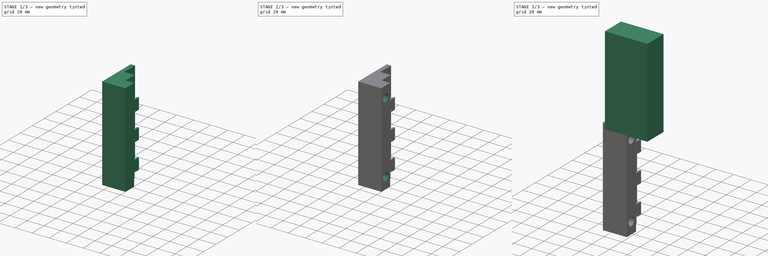
[diagram: build sequence overview — one tinted view per stage of 3, left to right]
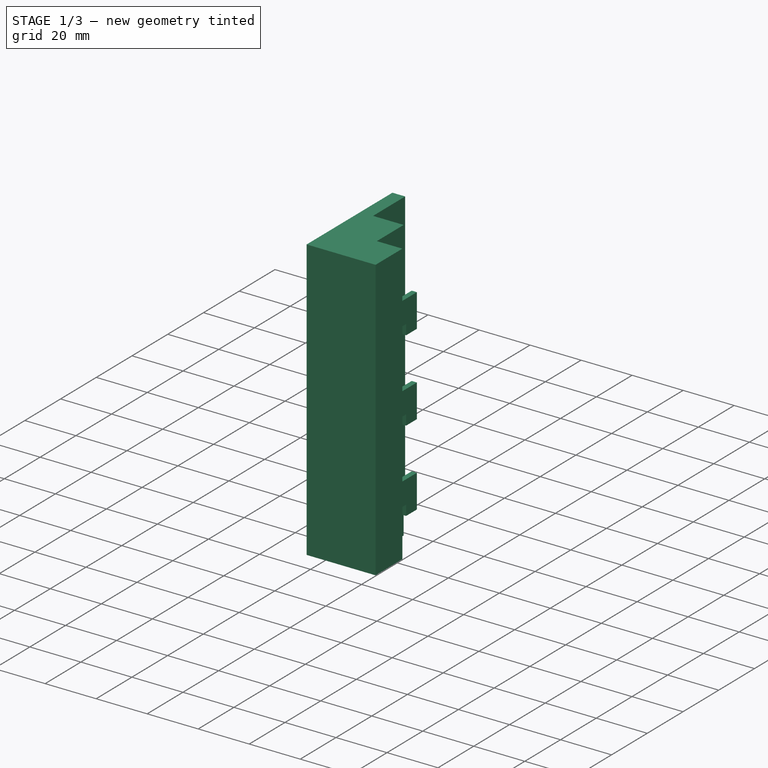
[diagram: stage 1 of 3 — iso view after this stage's code; geometry added in this stage tinted green]
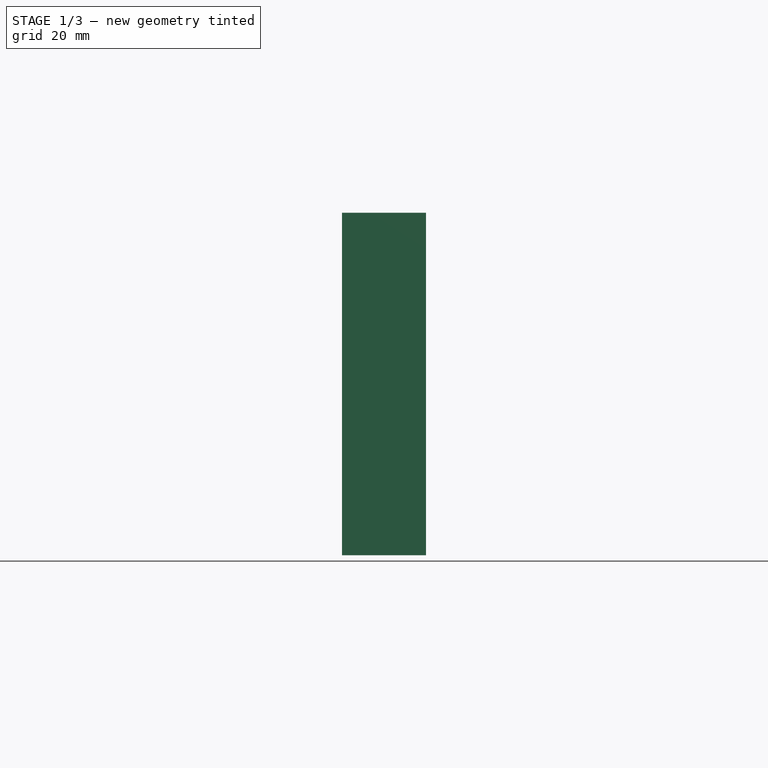
[diagram: stage 1 of 3 — front view after this stage's code; geometry added in this stage tinted green]
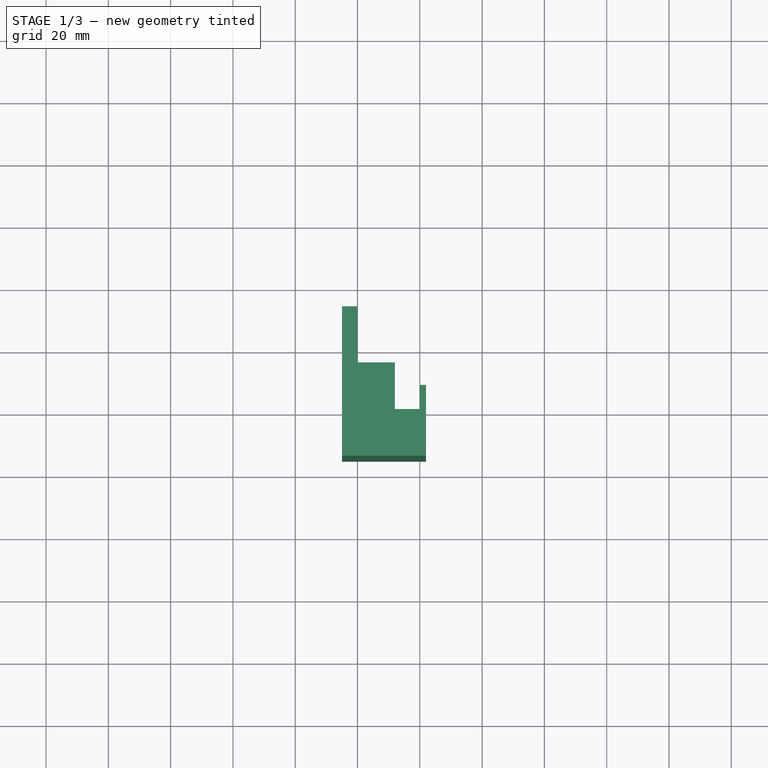
[diagram: stage 1 of 3 — top view after this stage's code; geometry added in this stage tinted green]
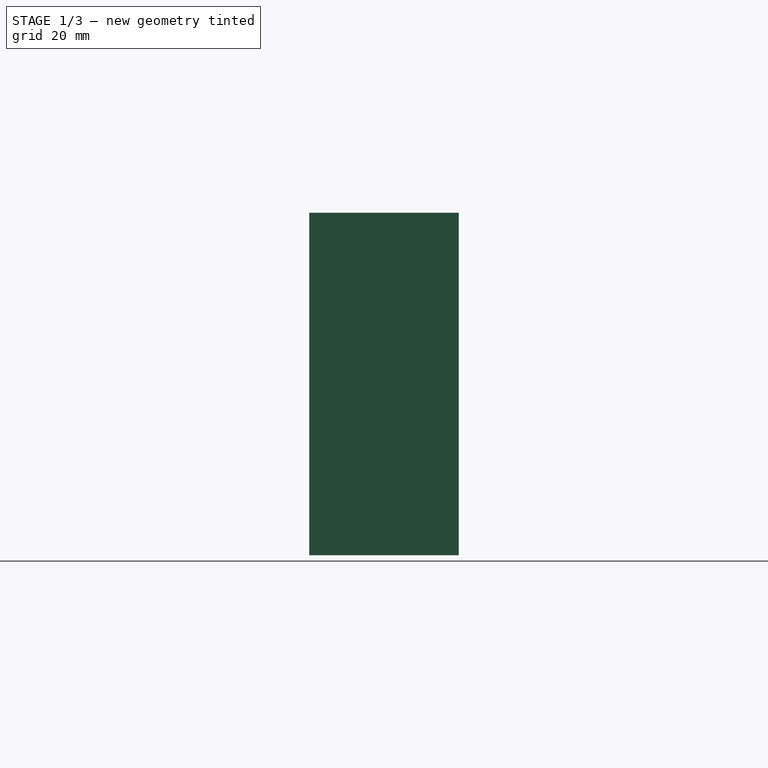
[diagram: stage 1 of 3 — right view after this stage's code; geometry added in this stage tinted green]
FCSTD DOCUMENT  (FreeCAD 0.19R24291 (Git))
Label: rack_rail_grabbers
License: All rights reserved
LicenseURL: http://en.wikipedia.org/wiki/All_rights_reserved
objects: Sketcher::SketchObject×6, PartDesign::Pad×3, PartDesign::Body×3, PartDesign::Hole×3, App::Part×2, PartDesign::FeatureBase×1
note: 22 computed .brp shape members not serialized (recipe doc carries the construction recipe); baked Part::Feature solids carry a one-line shape summary decoded from their .brp

FEATURE [PartDesign::Body] Body002
  BaseFeature = -> Body001
  Group = -> [Clone]
  Origin = -> Origin004
  Placement = pos=(0,-84,0) rot=(0,0,1;0rad)
  Tip = -> Clone
FEATURE [App::Part] Part001
  Group = -> [Body001,Body002]
  Origin = -> Origin002
  Placement = pos=(-25,3.3e-15,-110) rot=(0.57735,0.57735,-0.57735;4.18879rad)
FEATURE [Sketcher::SketchObject] Sketch004
  FullyConstrained = true
  MapMode = 5
  Support = -> [XY_Plane001]
  sketch-geometry (8):
    g0: LineSegment StartX=0 StartY=-15 StartZ=0 EndX=-25 EndY=-15 EndZ=0
    g1: LineSegment StartX=-25 StartY=-15 StartZ=0 EndX=-25 EndY=33 EndZ=0
    g2: LineSegment StartX=-25 StartY=33 StartZ=0 EndX=-20 EndY=33 EndZ=0
    g3: LineSegment StartX=-20 StartY=33 StartZ=0 EndX=-20 EndY=15 EndZ=0
    g4: LineSegment StartX=-20 StartY=15 StartZ=0 EndX=-8 EndY=15 EndZ=0
    g5: LineSegment StartX=-8 StartY=15 StartZ=0 EndX=-8 EndY=0 EndZ=0
    g6: LineSegment StartX=-8 StartY=0 StartZ=0 EndX=0 EndY=0 EndZ=0
    g7: LineSegment StartX=0 StartY=0 StartZ=0 EndX=0 EndY=-15 EndZ=0
  constraints (23):
    c: Horizontal(g0)
    c: Coincident(g0,g1)
    c: Vertical(g1)
    c: Coincident(g1,g2)
    c: Horizontal(g2)
    c: Coincident(g2,g3)
    c: Vertical(g3)
    c: Coincident(g3,g4)
    c: Horizontal(g4)
    c: Coincident(g4,g5)
    c: Vertical(g5)
    c: Coincident(g5,g6)
    c: Horizontal(g6)
    c: Coincident(g6,g7)
    c: Vertical(g7)
    c: Coincident(g7,g0)
    c: DistanceY(g1,g1) = 48
    c: DistanceX(g2,g2) = 5
    c: DistanceX(g4,g4) = 12
    c: DistanceX(g6,g6) = 8
    c: DistanceY(g7,g7) = 15
    c: Equal(g5,g7)
    c: Coincident(g6,g-1)
FEATURE [PartDesign::Pad] Pad
  Direction = (1,1,1)
  Length = 110
  Length2 = 100
  Profile = -> Sketch004
  Reversed = true
  Type = 0
FEATURE [Sketcher::SketchObject] Sketch
  FullyConstrained = true
  MapMode = 5
  Placement = pos=(0,0,0) rot=(0.57735,0.57735,0.57735;2.0944rad)
  Support = -> [Pad]
  expr: Constraints[15] = 17mm - .Constraints.notch_depth
  sketch-geometry (24):
    g0: LineSegment StartX=-15 StartY=-110 StartZ=0 EndX=0 EndY=-110 EndZ=0
    g1: LineSegment StartX=-15 StartY=0 StartZ=0 EndX=-15 EndY=-110 EndZ=0
    g2: LineSegment StartX=0 StartY=-18.5 StartZ=0 EndX=8.1 EndY=-18.5 EndZ=0
    g3: LineSegment StartX=8.1 StartY=-18.5 StartZ=0 EndX=8.1 EndY=-31.5 EndZ=0
    g4: LineSegment StartX=8.1 StartY=-31.5 StartZ=0 EndX=2.1 EndY=-31.5 EndZ=0
    g5: LineSegment StartX=2.1 StartY=-31.5 StartZ=0 EndX=2.1 EndY=-27.5 EndZ=0
    g6: LineSegment StartX=2.1 StartY=-27.5 StartZ=0 EndX=0 EndY=-27.5 EndZ=0
    g7: LineSegment StartX=0 StartY=-50.5 StartZ=0 EndX=8.1 EndY=-50.5 EndZ=0
    g8: LineSegment StartX=8.1 StartY=-50.5 StartZ=0 EndX=8.1 EndY=-63.5 EndZ=0
    g9: LineSegment StartX=8.1 StartY=-63.5 StartZ=0 EndX=2.1 EndY=-63.5 EndZ=0
    g10: LineSegment StartX=2.1 StartY=-63.5 StartZ=0 EndX=2.1 EndY=-59.5 EndZ=0
    g11: LineSegment StartX=2.1 StartY=-59.5 StartZ=0 EndX=0 EndY=-59.5 EndZ=0
    g12: LineSegment StartX=0 StartY=-18.5 StartZ=0 EndX=0 EndY=-50.5 EndZ=0
    g13: LineSegment StartX=0 StartY=-82.5 StartZ=0 EndX=8.1 EndY=-82.5 EndZ=0
    g14: LineSegment StartX=8.1 StartY=-82.5 StartZ=0 EndX=8.1 EndY=-95.5 EndZ=0
    g15: LineSegment StartX=8.1 StartY=-95.5 StartZ=0 EndX=2.1 EndY=-95.5 EndZ=0
    g16: LineSegment StartX=2.1 StartY=-95.5 StartZ=0 EndX=2.1 EndY=-91.5 EndZ=0
    g17: LineSegment StartX=2.1 StartY=-91.5 StartZ=0 EndX=0 EndY=-91.5 EndZ=0
    g18: LineSegment StartX=0 StartY=-50.5 StartZ=0 EndX=0 EndY=-82.5 EndZ=0
    g19: LineSegment StartX=0 StartY=-27.5 StartZ=0 EndX=0 EndY=-50.5 EndZ=0
    g20: LineSegment StartX=0 StartY=-59.5 StartZ=0 EndX=0 EndY=-82.5 EndZ=0
    g21: LineSegment StartX=0 StartY=-91.5 StartZ=0 EndX=0 EndY=-110 EndZ=0
    g22: LineSegment StartX=0 StartY=-18.5 StartZ=0 EndX=0 EndY=0 EndZ=0
    g23: LineSegment StartX=-15 StartY=0 StartZ=0 EndX=0 EndY=0 EndZ=0
  constraints (69):
    c: PointOnObject(g0,g-2)
    c: PointOnObject(g2,g-2)
    c: Coincident(g1,g0)
    c: Vertical(g1)
    c: Horizontal(g2)
    c: Coincident(g2,g3)
    c: Vertical(g3)
    c: Coincident(g3,g4)
    c: Horizontal(g4)
    c: Coincident(g4,g5)
    c: Vertical(g5)
    c: Coincident(g5,g6)
    c: Horizontal(g6)
    c: DistanceY(g5,g5) = 4  'notch_depth'
    c: DistanceX(g6,g6) = 2.1
    c: DistanceY(g3,g3) = 13
    c: DistanceX(g4,g4) = 6
    c: Vertical(g6,g2)
    c: Horizontal(g7)
    c: Coincident(g7,g8)
    c: Vertical(g8)
    c: Coincident(g8,g9)
    c: Horizontal(g9)
    c: Coincident(g9,g10)
    c: Vertical(g10)
    c: Coincident(g10,g11)
    c: Horizontal(g11)
    c: Equal(g5,g10) = 4  'notch_depth'
    c: Equal(g6,g11) = 3
    c: Equal(g3,g8) = 13
    c: Equal(g4,g9) = 6
    c: Vertical(g11,g7)
    c: Coincident(g2,g12)
    c: Coincident(g7,g12)
    c: Distance(g12) = 32
    c: Horizontal(g13)
    c: Coincident(g13,g14)
    c: Vertical(g14)
    c: Coincident(g14,g15)
    c: Horizontal(g15)
    c: Coincident(g15,g16)
    c: Vertical(g16)
    c: Coincident(g16,g17)
    c: Horizontal(g17)
    c: Equal(g5,g16) = 4  'notch_depth'
    c: Equal(g6,g17) = 3
    c: Equal(g3,g14) = 13
    c: Equal(g4,g15) = 6
    c: Vertical(g17,g13)
    c: Coincident(g7,g18)
    c: Coincident(g13,g18)
    c: Equal(g12,g18)
    c: Parallel(g18,g12)
    c: Vertical(g12)
    c: Coincident(g19,g6)
    c: Coincident(g19,g7)
    c: Coincident(g20,g11)
    c: Coincident(g20,g13)
    c: Coincident(g21,g17)
    c: Coincident(g21,g0)
    c: Coincident(g22,g2)
    c: Coincident(g23,g1)
    c: Coincident(g23,g22)
    c: Horizontal(g0)
    c: Horizontal(g23)
    c: DistanceY(g1,g1) = 110
    c: Equal(g21,g22)
    c: DistanceX(g0,g0) = 15  'face_depth'
    c: Coincident(g22,g-1)
FEATURE [PartDesign::Pad] Pad003
  BaseFeature = -> Pad
  Direction = (1,1,1)
  Length = 2
  Length2 = 100
  Profile = -> Sketch
  Type = 0
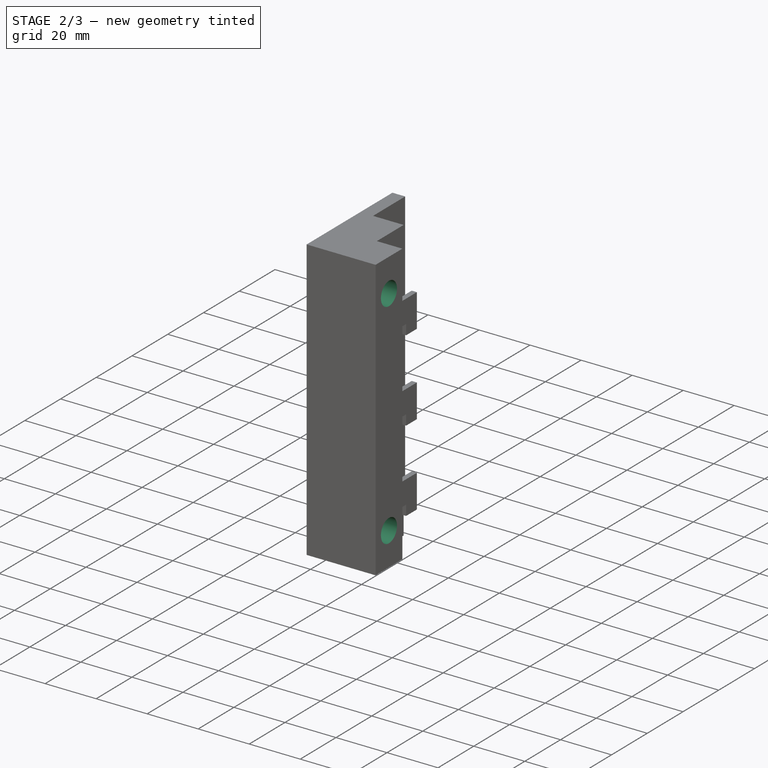
[diagram: stage 2 of 3 — iso view after this stage's code; geometry added in this stage tinted green]
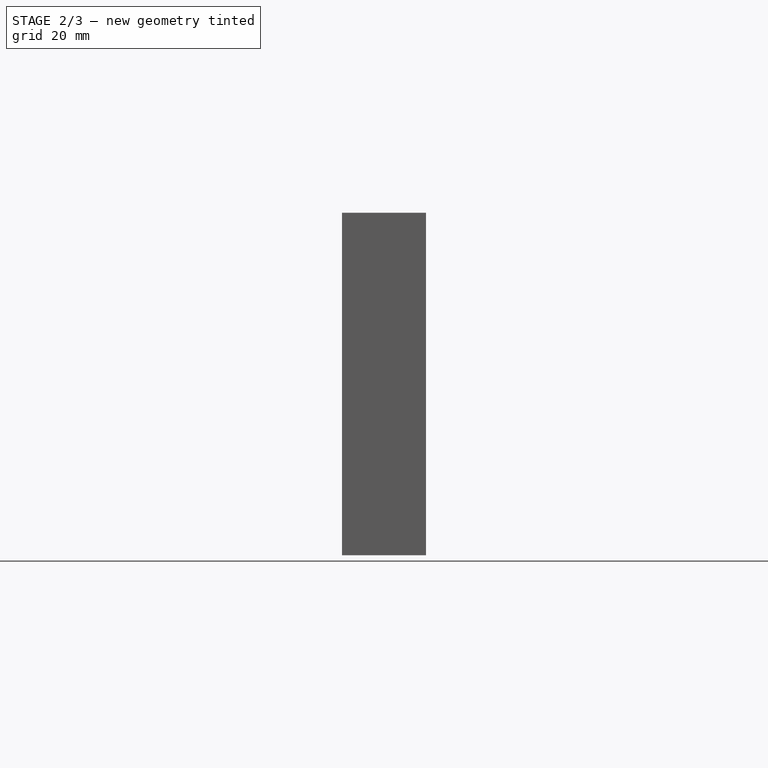
[diagram: stage 2 of 3 — front view after this stage's code; geometry added in this stage tinted green]
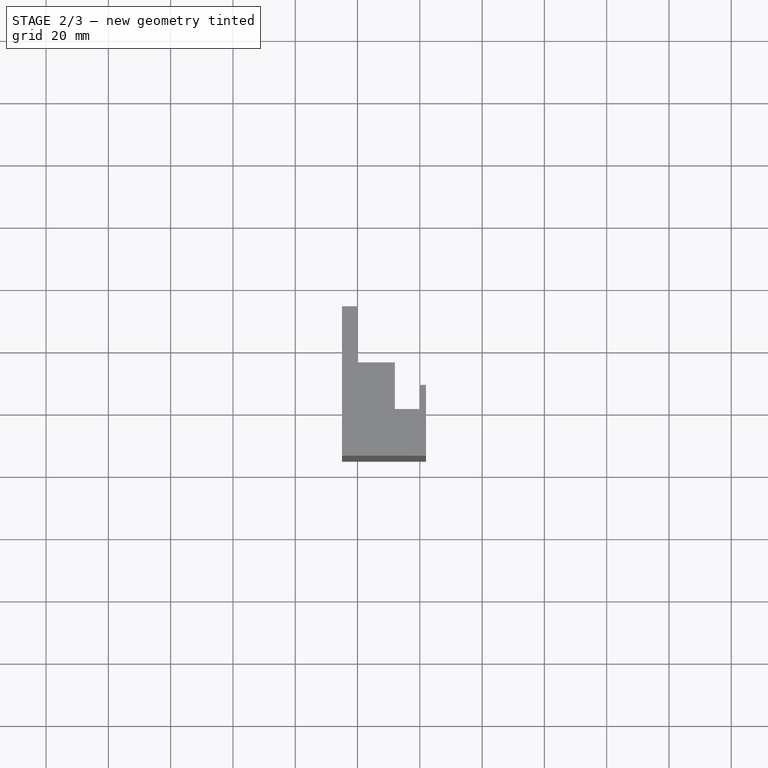
[diagram: stage 2 of 3 — top view after this stage's code; geometry added in this stage tinted green]
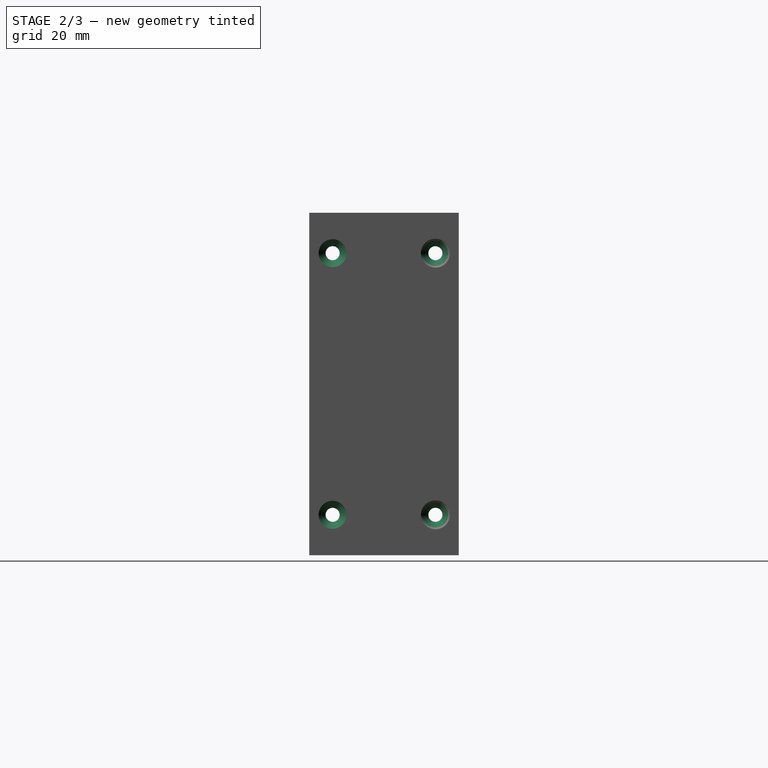
[diagram: stage 2 of 3 — right view after this stage's code; geometry added in this stage tinted green]
FEATURE [Sketcher::SketchObject] Sketch005
  ExternalGeometry = -> [Pad003]
  FullyConstrained = false
  MapMode = 5
  Placement = pos=(2,0,0) rot=(0.57735,0.57735,0.57735;2.0944rad)
  Support = -> [Pad003]
  sketch-geometry (4):
    g0: Circle CenterX=-7.5 CenterY=-13 CenterZ=0 NormalX=0 NormalY=0 NormalZ=1 AngleXU=0 Radius=2.61941
    g1: Circle CenterX=-7.5 CenterY=-97 CenterZ=0 NormalX=0 NormalY=0 NormalZ=1 AngleXU=0 Radius=1.45299
    g2: LineSegment StartX=-7.5 StartY=0 StartZ=0 EndX=-7.5 EndY=-13 EndZ=0
    g3: LineSegment StartX=-7.5 StartY=-97 StartZ=0 EndX=-7.5 EndY=-110 EndZ=0
  constraints (11):
    c: Vertical(g1,g0)
    c: PointOnObject(g2,g-1)
    c: Coincident(g2,g0)
    c: Vertical(g2)
    c: Coincident(g3,g1)
    c: Vertical(g3)
    c: Equal(g2,g3)
    c: PointOnObject(g3,g-3)
    c: DistanceX(g-3,g-3) = 15  'width'
    c: DistanceX(g-3,g3) = 7.5
    c: DistanceY(g3,g1) = 13
FEATURE [PartDesign::Hole] Hole
  BaseFeature = -> Pad003
  Depth = 25
  DepthType = 1
  Diameter = 4.5
  DrillForDepth = false
  DrillPoint = 1
  DrillPointAngle = 118
  HoleCutCountersinkAngle = 90
  HoleCutCustomValues = false
  HoleCutDepth = 15
  HoleCutDiameter = 9
  HoleCutType = 1
  ModelActualThread = false
  Profile = -> Sketch005
  Tapered = false
  TaperedAngle = 90
  ThreadAngle = 0
  ThreadClass = 0
  ThreadCutOffInner = 0
  ThreadCutOffOuter = 0
  ThreadDirection = 0
  ThreadFit = 0
  ThreadPitch = 0
  ThreadSize = 11
  ThreadType = 1
  Threaded = false
FEATURE [Sketcher::SketchObject] Sketch006
  ExternalGeometry = -> [Hole]
  FullyConstrained = false
  MapMode = 5
  Placement = pos=(-13,0,0) rot=(0.57735,0.57735,0.57735;2.0944rad)
  Support = -> [Hole]
  sketch-geometry (2):
    g0: Circle CenterX=-7.5 CenterY=-13 CenterZ=0 NormalX=0 NormalY=0 NormalZ=1 AngleXU=0 Radius=8.2228
    g1: Circle CenterX=-7.5 CenterY=-97 CenterZ=0 NormalX=0 NormalY=0 NormalZ=1 AngleXU=0 Radius=8.7535
  constraints (2):
    c: Coincident(g0,g-3)
    c: Coincident(g1,g-4)
FEATURE [PartDesign::Hole] Hole001
  BaseFeature = -> Hole
  Depth = 25
  DepthType = 0
  Diameter = 4.5
  DrillForDepth = false
  DrillPoint = 1
  DrillPointAngle = 118
  HoleCutCountersinkAngle = 90
  HoleCutCustomValues = false
  HoleCutDepth = 0
  HoleCutDiameter = 9
  HoleCutType = 2
  ModelActualThread = false
  Profile = -> Sketch006
  Tapered = false
  TaperedAngle = 90
  ThreadAngle = 0
  ThreadClass = 0
  ThreadCutOffInner = 0
  ThreadCutOffOuter = 0
  ThreadDirection = 0
  ThreadFit = 0
  ThreadPitch = 0
  ThreadSize = 11
  ThreadType = 1
  Threaded = false
FEATURE [Sketcher::SketchObject] Sketch007
  ExternalGeometry = -> [Hole001]
  FullyConstrained = false
  MapMode = 5
  Placement = pos=(-20,0,0) rot=(0.57735,0.57735,0.57735;2.0944rad)
  Support = -> [Hole001]
  sketch-geometry (4):
    g0: Circle CenterX=25.5 CenterY=-13 CenterZ=0 NormalX=0 NormalY=0 NormalZ=1 AngleXU=0 Radius=3.23762
    g1: Circle CenterX=25.5 CenterY=-97 CenterZ=0 NormalX=0 NormalY=0 NormalZ=1 AngleXU=0 Radius=3.85304
    g2: LineSegment StartX=-7.5 StartY=-13 StartZ=0 EndX=-15 EndY=-13 EndZ=0
    g3: LineSegment StartX=25.5 StartY=-13 StartZ=0 EndX=33 EndY=-13 EndZ=0
  constraints (10):
    c: Horizontal(g1,g-4)
    c: Horizontal(g0,g-3)
    c: Vertical(g1,g0)
    c: Coincident(g2,g-3)
    c: PointOnObject(g2,g-5)
    c: Horizontal(g2)
    c: Coincident(g3,g0)
    c: PointOnObject(g3,g-6)
    c: Horizontal(g3)
    c: Equal(g3,g2)
FEATURE [PartDesign::Hole] Hole002
  BaseFeature = -> Hole001
  Depth = 25
  DepthType = 0
  Diameter = 4.5
  DrillForDepth = false
  DrillPoint = 1
  DrillPointAngle = 118
  HoleCutCountersinkAngle = 90
  HoleCutCustomValues = false
  HoleCutDepth = 1.6
  HoleCutDiameter = 9.3
  HoleCutType = 2
  ModelActualThread = false
  Profile = -> Sketch007
  Tapered = false
  TaperedAngle = 90
  ThreadAngle = 0
  ThreadClass = 0
  ThreadCutOffInner = 0
  ThreadCutOffOuter = 0
  ThreadDirection = 0
  ThreadFit = 0
  ThreadPitch = 0
  ThreadSize = 11
  ThreadType = 1
  Threaded = false
FEATURE [PartDesign::Body] Body
  Group = -> [Sketch004,Pad,Sketch,Pad003,Sketch005,Hole,Sketch006,Hole001,Sketch007,Hole002]
  Origin = -> Origin001
  Tip = -> Hole002
FEATURE [App::Part] Part
  Group = -> [Body]
  Origin = -> Origin
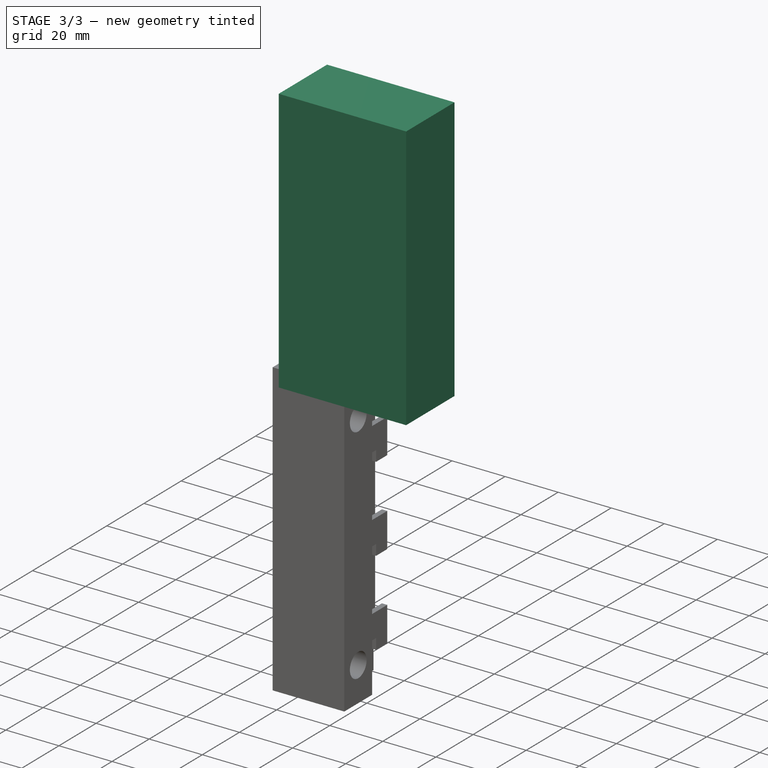
[diagram: stage 3 of 3 — iso view after this stage's code; geometry added in this stage tinted green]
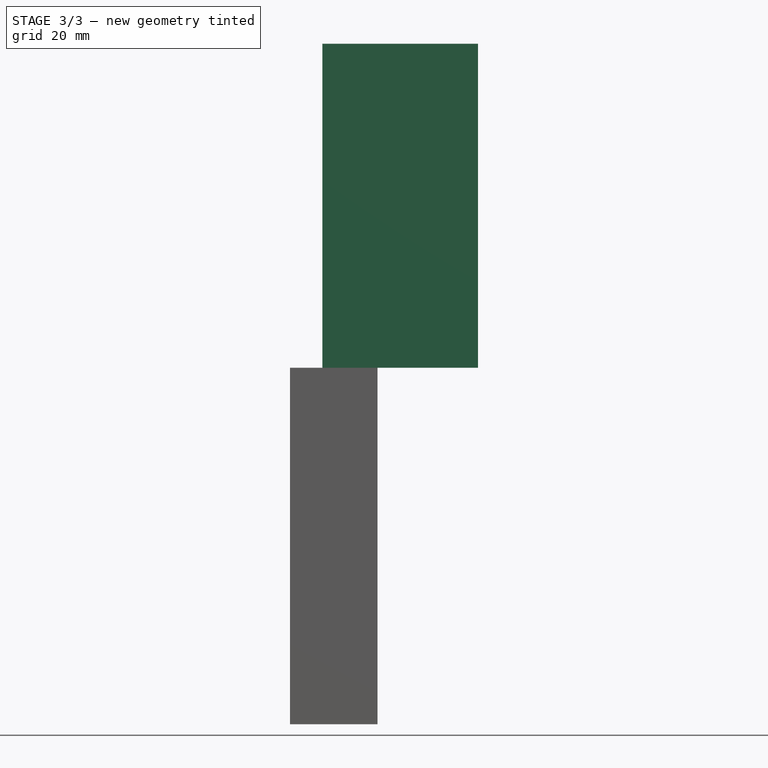
[diagram: stage 3 of 3 — front view after this stage's code; geometry added in this stage tinted green]
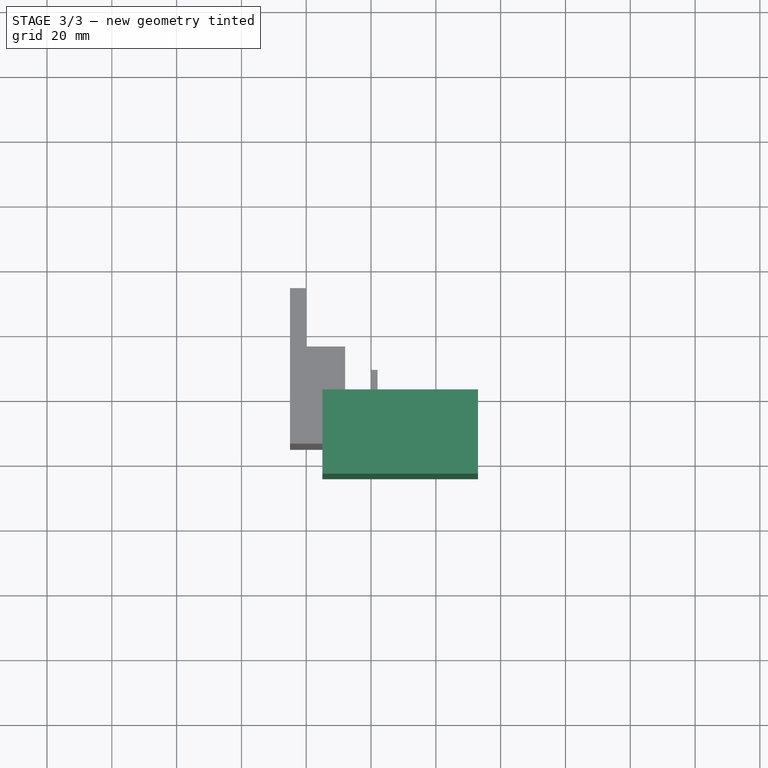
[diagram: stage 3 of 3 — top view after this stage's code; geometry added in this stage tinted green]
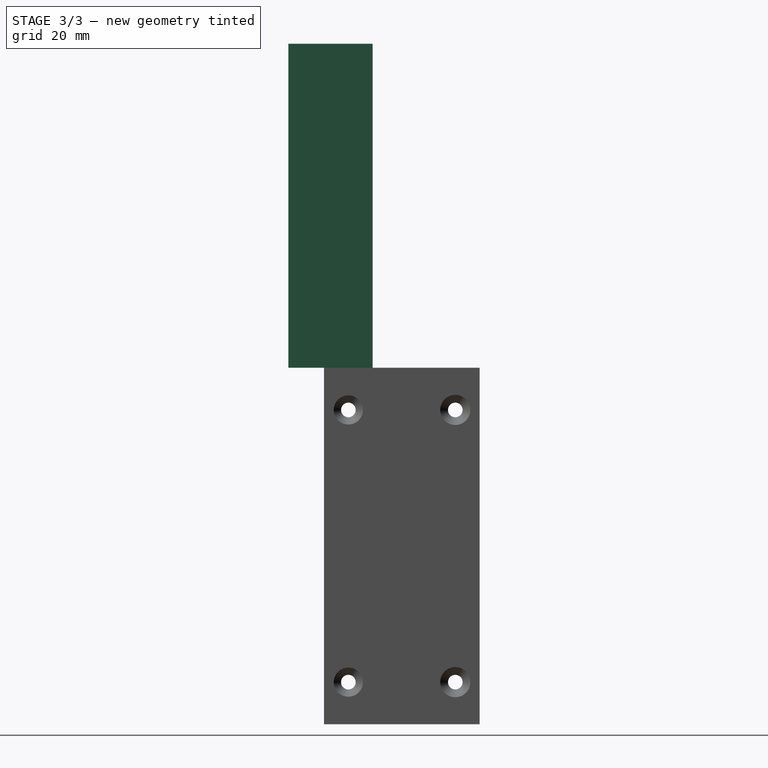
[diagram: stage 3 of 3 — right view after this stage's code; geometry added in this stage tinted green]
FEATURE [Sketcher::SketchObject] Sketch002
  FullyConstrained = true
  MapMode = 5
  Support = -> [XY_Plane003]
  expr: Constraints[10] = Sketch.Constraints.face_depth
  sketch-geometry (4):
    g0: LineSegment StartX=-15 StartY=0 StartZ=0 EndX=33 EndY=0 EndZ=0
    g1: LineSegment StartX=33 StartY=0 StartZ=0 EndX=33 EndY=-26 EndZ=0
    g2: LineSegment StartX=33 StartY=-26 StartZ=0 EndX=-15 EndY=-26 EndZ=0
    g3: LineSegment StartX=-15 StartY=-26 StartZ=0 EndX=-15 EndY=0 EndZ=0
  constraints (12):
    c: Coincident(g0,g1)
    c: Coincident(g1,g2)
    c: Coincident(g2,g3)
    c: Coincident(g3,g0)
    c: Horizontal(g0)
    c: Horizontal(g2)
    c: Vertical(g1)
    c: Vertical(g3)
    c: DistanceX(g0,g0) = 48
    c: DistanceY(g1,g1) = 26
    c: DistanceX(g0,g-1) = 15
    c: Horizontal(g0,g-1)
FEATURE [PartDesign::Pad] Pad002
  Direction = (1,1,1)
  Length = 100
  Length2 = 100
  Profile = -> Sketch002
  Type = 0
FEATURE [PartDesign::Body] Body001
  Group = -> [Sketch002,Pad002]
  Origin = -> Origin003
  Tip = -> Pad002
FEATURE [PartDesign::FeatureBase] Clone
  BaseFeature = -> Body001
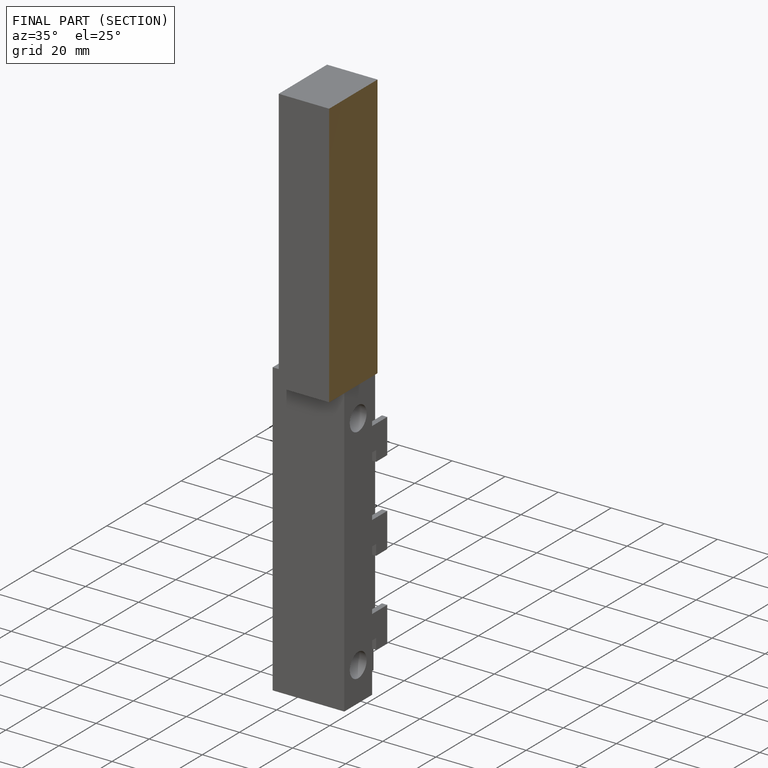
[diagram: finished part — half-section view (interior)]
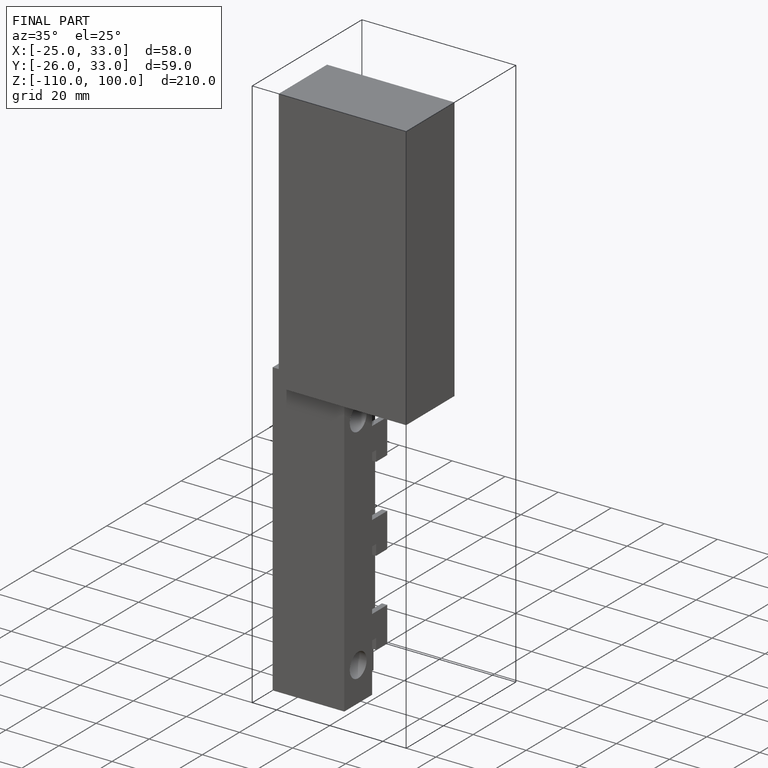
[diagram: finished part — iso view with bounding-box wireframe]
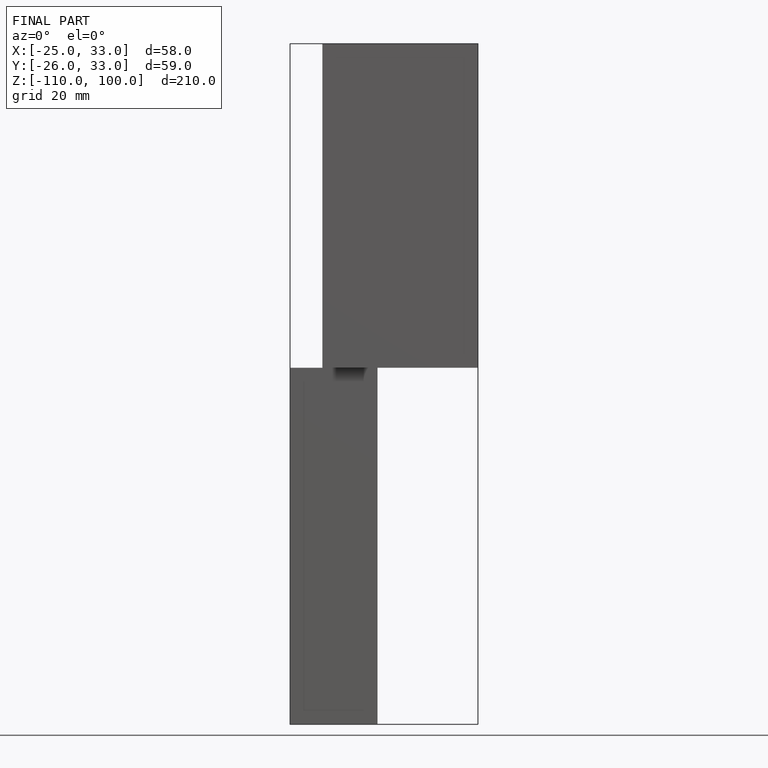
[diagram: finished part — front view with bounding-box wireframe]
